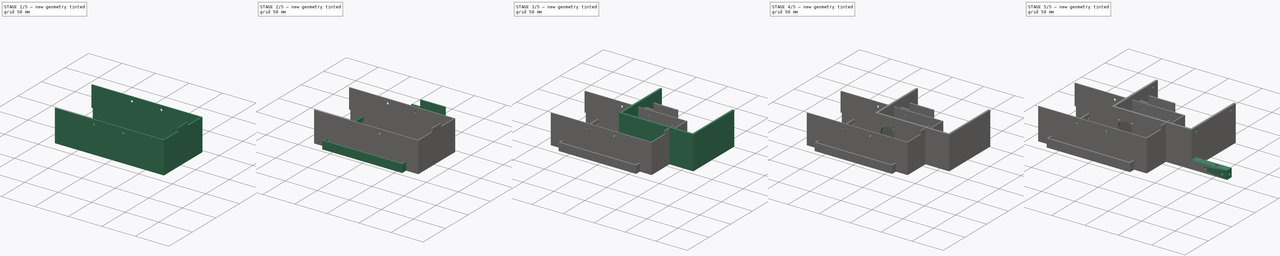
[diagram: build sequence overview — one tinted view per stage of 5, left to right]
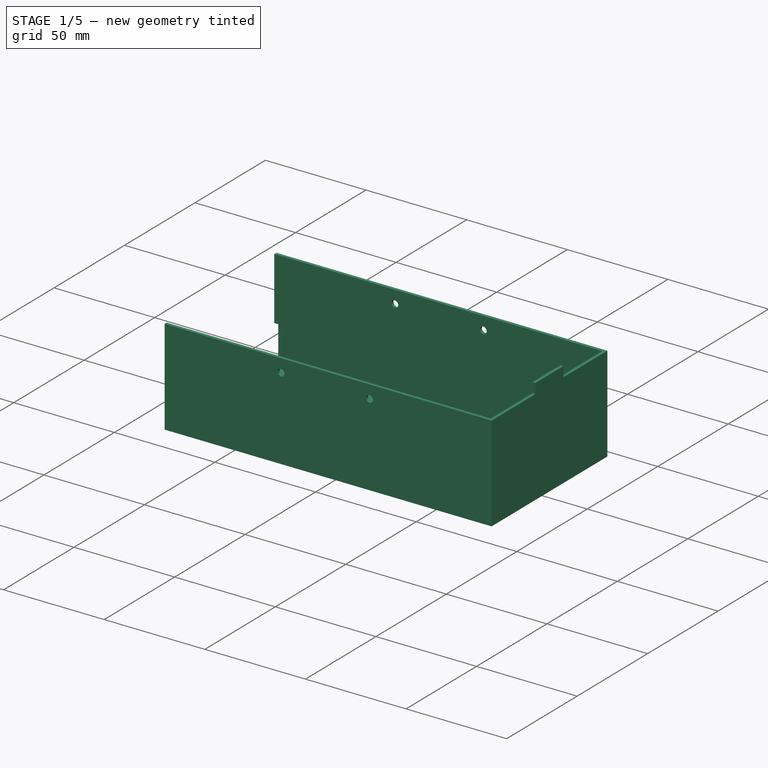
[diagram: stage 1 of 5 — iso view after this stage's code; geometry added in this stage tinted green]
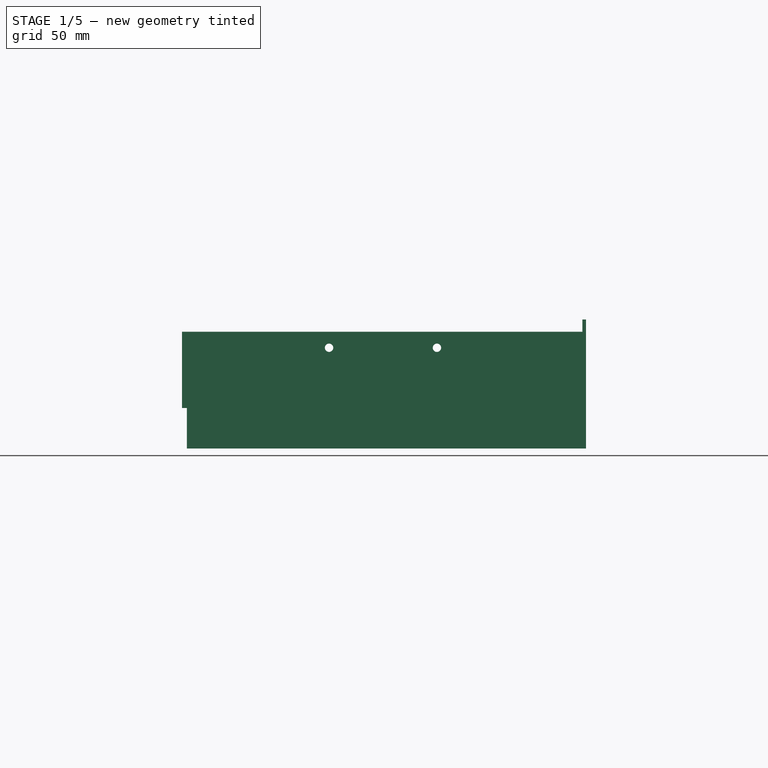
[diagram: stage 1 of 5 — front view after this stage's code; geometry added in this stage tinted green]
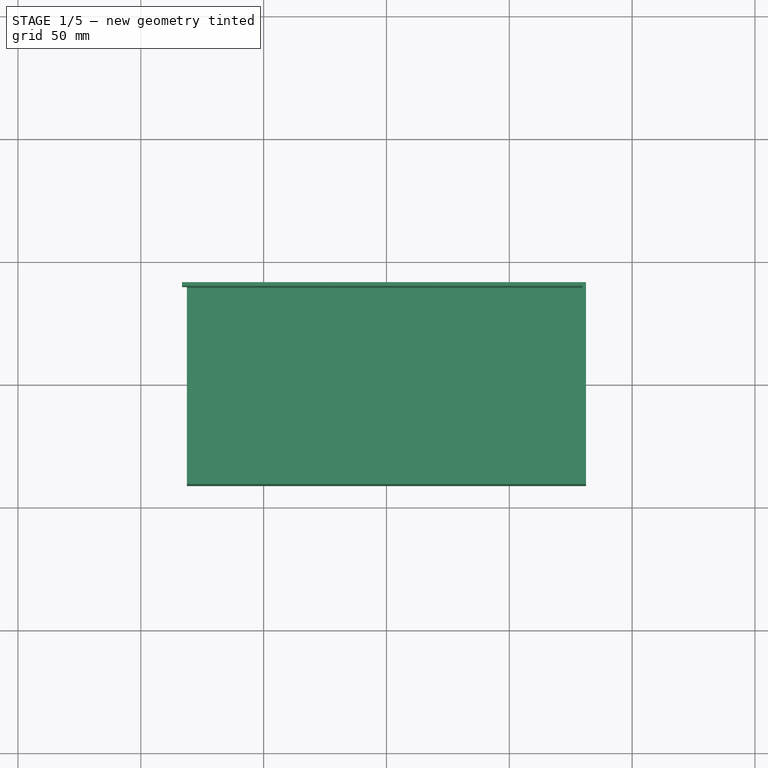
[diagram: stage 1 of 5 — top view after this stage's code; geometry added in this stage tinted green]
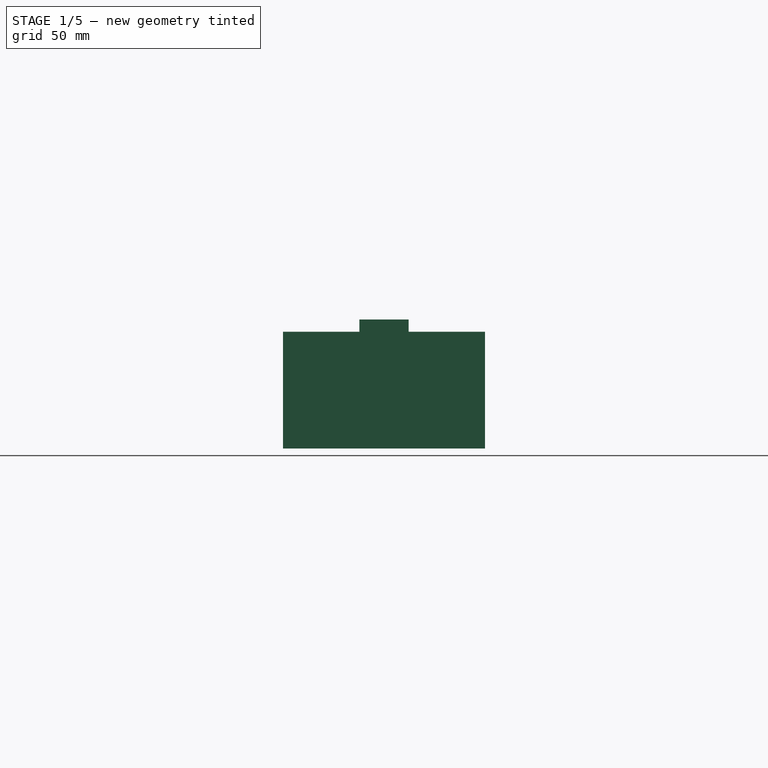
[diagram: stage 1 of 5 — right view after this stage's code; geometry added in this stage tinted green]
FCSTD DOCUMENT  (FreeCAD 1.0R39109 (Git))
Label: ContainerParts
License: All rights reserved
LicenseURL: http://en.wikipedia.org/wiki/All_rights_reserved
objects: Sketcher::SketchObject×30, PartDesign::Pad×17, PartDesign::Pocket×13, PartDesign::Body×5, App::Part×5
note: 155 computed .brp shape members not serialized (recipe doc carries the construction recipe); baked Part::Feature solids carry a one-line shape summary decoded from their .brp

FEATURE [PartDesign::Body] Body003  label="CoverPad"
  AllowCompound = false
  Group = -> [Sketch016,Pad006,Sketch017,Pad007,Sketch018,Pocket010,Sketch019,Pad008,Sketch020,Pad009,Sketch021,Pad010,Sketch022,Pad011,Sketch023,Pad012]
  Origin = -> Origin007
  Tip = -> Pad012
FEATURE [App::Part] Part003  label="MotorBoxCover1"
  Group = -> [Body003]
  Origin = -> Origin006
FEATURE [Sketcher::SketchObject] Sketch024
  ArcFitTolerance = 1e-06
  AttachmentSupport = -> [XY_Plane009]
  FullyConstrained = true
  MakeInternals = false
  MapMode = 5
  sketch-geometry (4):
    g0: LineSegment StartX=-81.25 StartY=41.1 StartZ=0 EndX=-81.25 EndY=-41.1 EndZ=0
    g1: LineSegment StartX=-81.25 StartY=-41.1 StartZ=0 EndX=81.25 EndY=-41.1 EndZ=0
    g2: LineSegment StartX=81.25 StartY=-41.1 StartZ=0 EndX=81.25 EndY=41.1 EndZ=0
    g3: LineSegment StartX=81.25 StartY=41.1 StartZ=0 EndX=-81.25 EndY=41.1 EndZ=0
  constraints (11):
    c: Coincident(g0,g1)
    c: Coincident(g1,g2)
    c: Coincident(g2,g3)
    c: Coincident(g3,g0)
    c: Vertical(g0)
    c: Vertical(g2)
    c: Horizontal(g1)
    c: Horizontal(g3)
    c: Distance(g0,g2) = 162.5
    c: Distance(g1,g3) = 82.2
    c: Symmetric(g2,g0,g-1)
FEATURE [PartDesign::Pad] Pad013  label="BackPad001"
  Direction = (0,0,1)
  Length = 1.5
  Length2 = 10
  Profile = -> Sketch024
  ReferenceAxis = -> Sketch024 [N_Axis]
  Refine = true
  Suppressed = false
  Type = 0
FEATURE [Sketcher::SketchObject] Sketch025
  ArcFitTolerance = 1e-06
  AttachmentSupport = -> [Pad013]
  FullyConstrained = true
  MakeInternals = false
  MapMode = 5
  Placement = pos=(0,0,1.5) rot=(0,0,1;0rad)
  sketch-geometry (8):
    g0: LineSegment StartX=-81.25 StartY=41.1 StartZ=0 EndX=81.25 EndY=41.1 EndZ=0
    g1: LineSegment StartX=81.25 StartY=41.1 StartZ=0 EndX=81.25 EndY=-41.1 EndZ=0
    g2: LineSegment StartX=81.25 StartY=-41.1 StartZ=0 EndX=-81.25 EndY=-41.1 EndZ=0
    g3: LineSegment StartX=-81.25 StartY=-41.1 StartZ=0 EndX=-81.25 EndY=-39.6 EndZ=0
    g4: LineSegment StartX=-81.25 StartY=-39.6 StartZ=0 EndX=79.75 EndY=-39.6 EndZ=0
    g5: LineSegment StartX=79.75 StartY=-39.6 StartZ=0 EndX=79.75 EndY=39.6 EndZ=0
    g6: LineSegment StartX=79.75 StartY=39.6 StartZ=0 EndX=-81.25 EndY=39.6 EndZ=0
    g7: LineSegment StartX=-81.25 StartY=41.1 StartZ=0 EndX=-81.25 EndY=39.6 EndZ=0
  constraints (24):
    c: Horizontal(g0)
    c: Coincident(g0,g1)
    c: Vertical(g1)
    c: Coincident(g1,g2)
    c: Horizontal(g2)
    c: Coincident(g2,g3)
    c: Vertical(g3)
    c: Coincident(g3,g4)
    c: Horizontal(g4)
    c: Coincident(g4,g5)
    c: Vertical(g5)
    c: Coincident(g5,g6)
    c: Horizontal(g6)
    c: Coincident(g0,g7)
    c: Coincident(g7,g6)
    c: Vertical(g7)
    c: DistanceX(g0,g0) = 162.5
    c: DistanceY(g1,g1) = 82.2
    c: DistanceY(g7,g7) = 1.5
    c: DistanceY(g3,g3) = 1.5
    c: DistanceY(g-1,g0) = 41.1
    c: DistanceX(g-1,g0) = 81.25
    c: DistanceX(g5,g0) = 1.5
    c: DistanceX(g2,g1) = 162.5
FEATURE [PartDesign::Pad] Pad014  label="EdgePad"
  BaseFeature = -> Pad013
  Direction = (0,0,1)
  Length = 46
  Length2 = 10
  Profile = -> Sketch025
  ReferenceAxis = -> Sketch025 [N_Axis]
  Refine = true
  Suppressed = false
  Type = 0
FEATURE [Sketcher::SketchObject] Sketch026
  ArcFitTolerance = 1e-06
  AttachmentSupport = -> [Pad014]
  FullyConstrained = true
  MakeInternals = false
  MapMode = 5
  Placement = pos=(-81.25,0,0) rot=(0.57735,-0.57735,-0.57735;2.0944rad)
  sketch-geometry (4):
    g0: LineSegment StartX=-41.1 StartY=47.5 StartZ=0 EndX=-41.1 EndY=16.5 EndZ=0
    g1: LineSegment StartX=-41.1 StartY=16.5 StartZ=0 EndX=-39.6 EndY=16.5 EndZ=0
    g2: LineSegment StartX=-39.6 StartY=16.5 StartZ=0 EndX=-39.6 EndY=47.5 EndZ=0
    g3: LineSegment StartX=-39.6 StartY=47.5 StartZ=0 EndX=-41.1 EndY=47.5 EndZ=0
  constraints (12):
    c: Coincident(g0,g1)
    c: Coincident(g1,g2)
    c: Coincident(g2,g3)
    c: Coincident(g3,g0)
    c: Vertical(g0)
    c: Vertical(g2)
    c: Horizontal(g1)
    c: Horizontal(g3)
    c: Distance(g0,g2) = 1.5
    c: Distance(g1,g3) = 31
    c: DistanceY(g-1,g2) = 47.5
    c: DistanceX(g0,g-1) = 41.1
FEATURE [PartDesign::Pad] Pad015
  BaseFeature = -> Pad014
  Direction = (-1,0,0)
  Length = 2
  Length2 = 10
  Profile = -> Sketch026
  ReferenceAxis = -> Sketch026 [N_Axis]
  Refine = true
  Suppressed = false
  Type = 0
FEATURE [Sketcher::SketchObject] Sketch027
  ArcFitTolerance = 1e-06
  AttachmentSupport = -> [Pad015]
  FullyConstrained = true
  MakeInternals = false
  MapMode = 5
  Placement = pos=(0,0,47.5) rot=(0,0,1;0rad)
  sketch-geometry (4):
    g0: LineSegment StartX=79.75 StartY=10 StartZ=0 EndX=79.75 EndY=-10 EndZ=0
    g1: LineSegment StartX=79.75 StartY=-10 StartZ=0 EndX=81.25 EndY=-10 EndZ=0
    g2: LineSegment StartX=81.25 StartY=-10 StartZ=0 EndX=81.25 EndY=10 EndZ=0
    g3: LineSegment StartX=81.25 StartY=10 StartZ=0 EndX=79.75 EndY=10 EndZ=0
  constraints (12):
    c: Coincident(g0,g1)
    c: Coincident(g1,g2)
    c: Coincident(g2,g3)
    c: Coincident(g3,g0)
    c: Vertical(g0)
    c: Vertical(g2)
    c: Horizontal(g1)
    c: Horizontal(g3)
    c: Distance(g0,g2) = 1.5
    c: Distance(g1,g3) = 20
    c: DistanceY(g0,g-1) = 10
    c: DistanceX(g-1,g2) = 81.25
FEATURE [PartDesign::Pad] Pad016
  BaseFeature = -> Pad015
  Direction = (0,0,1)
  Length = 5
  Length2 = 10
  Profile = -> Sketch027
  ReferenceAxis = -> Sketch027 [N_Axis]
  Refine = true
  Suppressed = false
  Type = 0
FEATURE [Sketcher::SketchObject] Sketch028
  ArcFitTolerance = 1e-06
  AttachmentSupport = -> [Pad016]
  FullyConstrained = true
  MakeInternals = false
  MapMode = 5
  Placement = pos=(81.25,0,0) rot=(0.57735,0.57735,0.57735;2.0944rad)
  sketch-geometry (2):
    g0: Circle CenterX=-33.25 CenterY=42.5 CenterZ=0 NormalX=0 NormalY=0 NormalZ=1 AngleXU=0 Radius=1.7
    g1: Circle CenterX=33.25 CenterY=42.5 CenterZ=0 NormalX=0 NormalY=0 NormalZ=1 AngleXU=0 Radius=1.7
  constraints (6):
    c: Diameter(g0) = 3.4
    c: Diameter(g1) = 3.4
    c: DistanceY(g1,g0) = 0
    c: DistanceY(g-1,g0) = 42.5
    c: DistanceX(g0,g-1) = 33.25
    c: DistanceX(g-1,g1) = 33.25
FEATURE [PartDesign::Pocket] Pocket011
  BaseFeature = -> Pad016
  Direction = (-1,0,0)
  Length = 0.001
  Length2 = 5
  Profile = -> Sketch028
  ReferenceAxis = -> Sketch028 [N_Axis]
  Refine = true
  Suppressed = false
  Type = 0
FEATURE [Sketcher::SketchObject] Sketch029
  ArcFitTolerance = 1e-06
  AttachmentSupport = -> [Pocket011]
  FullyConstrained = true
  MakeInternals = false
  MapMode = 5
  Placement = pos=(0,41.1,0) rot=(0,0.707107,0.707107;3.14159rad)
  sketch-geometry (2):
    g0: Circle CenterX=-20.55 CenterY=41 CenterZ=0 NormalX=0 NormalY=0 NormalZ=1 AngleXU=0 Radius=1.7
    g1: Circle CenterX=23.36 CenterY=41 CenterZ=0 NormalX=0 NormalY=0 NormalZ=1 AngleXU=0 Radius=1.7
  constraints (6):
    c: DistanceY(g1,g0) = 0
    c: Equal(g0,g1)
    c: Diameter(g0) = 3.4
    c: DistanceY(g-1,g1) = 41
    c: DistanceX(g0,g-1) = 20.55
    c: DistanceX(g1,g-1) = -23.36
FEATURE [PartDesign::Pocket] Pocket012
  BaseFeature = -> Pocket011
  Direction = (0,-1,2e-16)
  Length = 5
  Length2 = 5
  Profile = -> Sketch029
  ReferenceAxis = -> Sketch029 [N_Axis]
  Refine = true
  Suppressed = false
  Type = 1
FEATURE [PartDesign::Body] Body004  label="BigCoverBody"
  AllowCompound = false
  Group = -> [Sketch024,Pad013,Sketch025,Pad014,Sketch026,Pad015,Sketch027,Pad016,Sketch028,Pocket011,Sketch029,Pocket012]
  Origin = -> Origin009
  Tip = -> Pocket012
FEATURE [App::Part] Part004  label="BigCover"
  Group = -> [Body004]
  Origin = -> Origin008
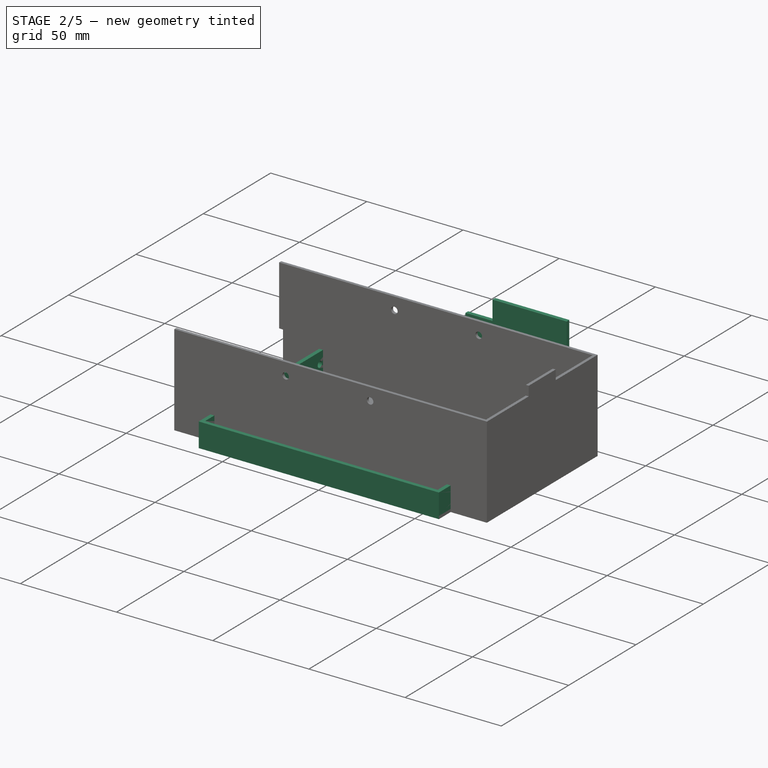
[diagram: stage 2 of 5 — iso view after this stage's code; geometry added in this stage tinted green]
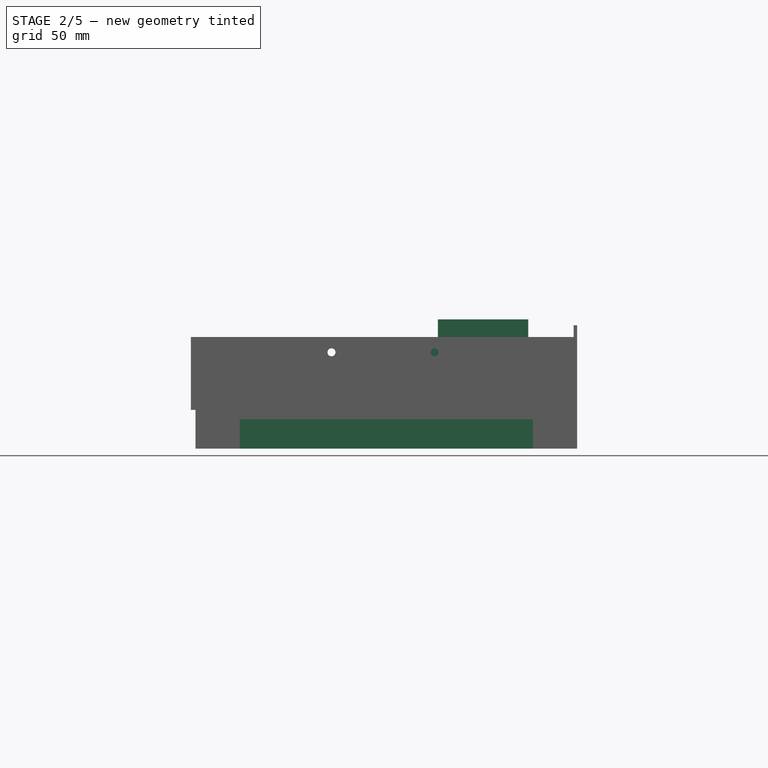
[diagram: stage 2 of 5 — front view after this stage's code; geometry added in this stage tinted green]
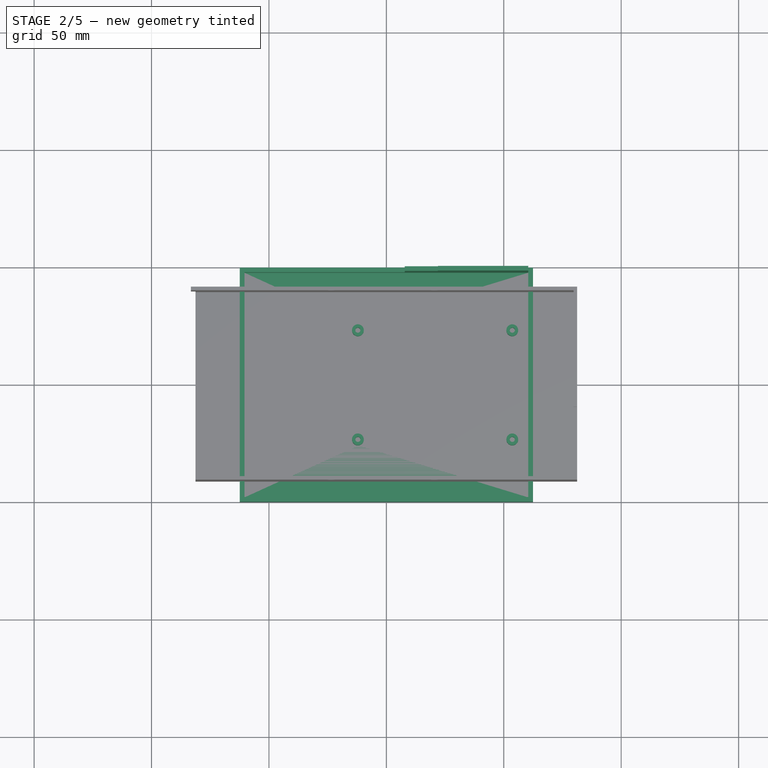
[diagram: stage 2 of 5 — top view after this stage's code; geometry added in this stage tinted green]
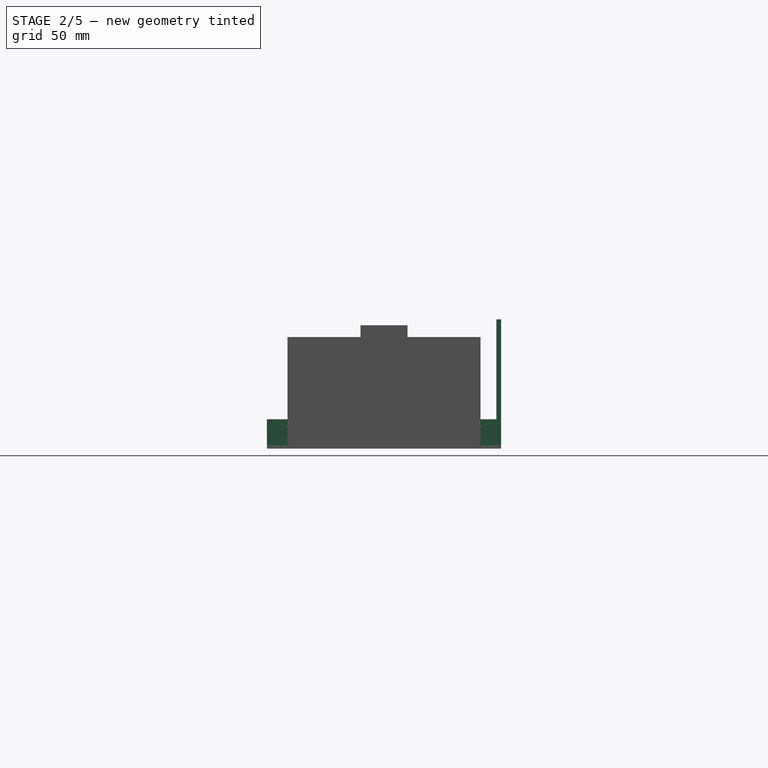
[diagram: stage 2 of 5 — right view after this stage's code; geometry added in this stage tinted green]
FEATURE [PartDesign::Body] Body002  label="MotorBox1Body"
  AllowCompound = false
  Group = -> [Sketch005,Pad002,Sketch006,Pad003,Sketch007,Pocket003,Sketch008,Pad004,Sketch009,Pocket004,Sketch010,Pocket005,Sketch011,Pad005,Sketch012,Pocket006,Sketch013,Pocket007,Sketch014,Pocket008,Sketch015,Pocket009]
  Origin = -> Origin005
  Tip = -> Pocket009
FEATURE [App::Part] Part002  label="MotorBox1"
  Group = -> [Body002]
  Origin = -> Origin004
FEATURE [Sketcher::SketchObject] Sketch016
  ArcFitTolerance = 1e-06
  AttachmentSupport = -> [XY_Plane007]
  FullyConstrained = true
  MakeInternals = false
  MapMode = 5
  sketch-geometry (4):
    g0: LineSegment StartX=-62.425 StartY=49.85 StartZ=0 EndX=-62.425 EndY=-49.85 EndZ=0
    g1: LineSegment StartX=-62.425 StartY=-49.85 StartZ=0 EndX=62.425 EndY=-49.85 EndZ=0
    g2: LineSegment StartX=62.425 StartY=-49.85 StartZ=0 EndX=62.425 EndY=49.85 EndZ=0
    g3: LineSegment StartX=62.425 StartY=49.85 StartZ=0 EndX=-62.425 EndY=49.85 EndZ=0
  constraints (11):
    c: Coincident(g0,g1)
    c: Coincident(g1,g2)
    c: Coincident(g2,g3)
    c: Coincident(g3,g0)
    c: Vertical(g0)
    c: Vertical(g2)
    c: Horizontal(g1)
    c: Horizontal(g3)
    c: Distance(g0,g2) = 124.85
    c: Distance(g1,g3) = 99.7
    c: Symmetric(g2,g0,g-1)
FEATURE [PartDesign::Pad] Pad006  label="TopPad"
  Direction = (0,0,1)
  Length = 1.5
  Length2 = 10
  Profile = -> Sketch016
  ReferenceAxis = -> Sketch016 [N_Axis]
  Suppressed = false
  Type = 0
FEATURE [Sketcher::SketchObject] Sketch017
  ArcFitTolerance = 1e-06
  AttachmentSupport = -> [Pad006]
  FullyConstrained = true
  MakeInternals = false
  MapMode = 5
  Placement = pos=(0,0,1.5) rot=(0,0,1;0rad)
  sketch-geometry (8):
    g0: LineSegment StartX=-62.425 StartY=49.85 StartZ=0 EndX=-62.425 EndY=-49.85 EndZ=0
    g1: LineSegment StartX=-62.425 StartY=-49.85 StartZ=0 EndX=62.425 EndY=-49.85 EndZ=0
    g2: LineSegment StartX=62.425 StartY=-49.85 StartZ=0 EndX=62.425 EndY=49.85 EndZ=0
    g3: LineSegment StartX=62.425 StartY=49.85 StartZ=0 EndX=-62.425 EndY=49.85 EndZ=0
    g4: LineSegment StartX=-60.425 StartY=47.85 StartZ=0 EndX=-60.425 EndY=-47.85 EndZ=0
    g5: LineSegment StartX=-60.425 StartY=-47.85 StartZ=0 EndX=60.425 EndY=-47.85 EndZ=0
    g6: LineSegment StartX=60.425 StartY=-47.85 StartZ=0 EndX=60.425 EndY=47.85 EndZ=0
    g7: LineSegment StartX=60.425 StartY=47.85 StartZ=0 EndX=-60.425 EndY=47.85 EndZ=0
  constraints (22):
    c: Coincident(g0,g1)
    c: Coincident(g1,g2)
    c: Coincident(g2,g3)
    c: Coincident(g3,g0)
    c: Vertical(g0)
    c: Vertical(g2)
    c: Horizontal(g1)
    c: Horizontal(g3)
    c: Distance(g0,g2) = 124.85
    c: Distance(g1,g3) = 99.7
    c: Symmetric(g2,g0,g-1)
    c: Coincident(g4,g5)
    c: Coincident(g5,g6)
    c: Coincident(g6,g7)
    c: Coincident(g7,g4)
    c: Vertical(g4)
    c: Vertical(g6)
    c: Horizontal(g5)
    c: Horizontal(g7)
    c: Distance(g4,g6) = 120.85
    c: Distance(g5,g7) = 95.7
    c: Symmetric(g4,g5,g-1)
FEATURE [PartDesign::Pad] Pad007  label="EdgePad1"
  BaseFeature = -> Pad006
  Direction = (0,0,1)
  Length = 11
  Length2 = 10
  Profile = -> Sketch017
  ReferenceAxis = -> Sketch017 [N_Axis]
  Suppressed = false
  Type = 0
FEATURE [Sketcher::SketchObject] Sketch018
  ArcFitTolerance = 1e-06
  AttachmentSupport = -> [Pad007]
  FullyConstrained = true
  MakeInternals = false
  MapMode = 5
  Placement = pos=(-62.425,0,0) rot=(0.57735,-0.57735,-0.57735;2.0944rad)
  sketch-geometry (2):
    g0: Circle CenterX=-37.25 CenterY=6.6 CenterZ=0 NormalX=0 NormalY=0 NormalZ=1 AngleXU=0 Radius=1.6
    g1: Circle CenterX=37.25 CenterY=6.6 CenterZ=0 NormalX=0 NormalY=0 NormalZ=1 AngleXU=0 Radius=1.6
  constraints (6):
    c: Diameter(g0) = 3.2
    c: Diameter(g1) = 3.2
    c: DistanceY(g1,g0) = 0
    c: DistanceX(g0,g1) = 74.5
    c: DistanceX(g0,g-1) = 37.25
    c: DistanceY(g-1,g0) = 6.6
FEATURE [PartDesign::Pocket] Pocket010  label="ScrewHoles"
  BaseFeature = -> Pad007
  Direction = (1,0,0)
  Length = 5
  Length2 = 5
  Profile = -> Sketch018
  ReferenceAxis = -> Sketch018 [N_Axis]
  Suppressed = false
  Type = 1
FEATURE [Sketcher::SketchObject] Sketch019
  ArcFitTolerance = 1e-06
  AttachmentSupport = -> [Pocket010]
  FullyConstrained = true
  MakeInternals = false
  MapMode = 5
  Placement = pos=(0,0,1.5) rot=(0,0,1;0rad)
  sketch-geometry (8):
    g0: Circle CenterX=-12.12 CenterY=23.25 CenterZ=0 NormalX=0 NormalY=0 NormalZ=1 AngleXU=0 Radius=2.5
    g1: Circle CenterX=53.63 CenterY=23.25 CenterZ=0 NormalX=0 NormalY=0 NormalZ=1 AngleXU=0 Radius=2.5
    g2: Circle CenterX=53.63 CenterY=-23.25 CenterZ=0 NormalX=0 NormalY=0 NormalZ=1 AngleXU=0 Radius=2.5
    g3: Circle CenterX=-12.12 CenterY=-23.25 CenterZ=0 NormalX=0 NormalY=0 NormalZ=1 AngleXU=0 Radius=2.5
    g4: Circle CenterX=-12.12 CenterY=23.25 CenterZ=0 NormalX=0 NormalY=0 NormalZ=1 AngleXU=0 Radius=1.1
    g5: Circle CenterX=53.63 CenterY=23.25 CenterZ=0 NormalX=0 NormalY=0 NormalZ=1 AngleXU=0 Radius=1.1
    g6: Circle CenterX=53.63 CenterY=-23.25 CenterZ=0 NormalX=0 NormalY=0 NormalZ=1 AngleXU=0 Radius=1.1
    g7: Circle CenterX=-12.12 CenterY=-23.25 CenterZ=0 NormalX=0 NormalY=0 NormalZ=1 AngleXU=0 Radius=1.1
  constraints (20):
    c: Diameter(g0) = 5
    c: Diameter(g1) = 5
    c: Diameter(g2) = 5
    c: Diameter(g3) = 5
    c: DistanceY(g2,g3) = 0
    c: DistanceY(g0,g1) = 0
    c: DistanceX(g2,g1) = 0
    c: DistanceX(g3,g0) = 0
    c: DistanceX(g0,g1) = 65.75
    c: DistanceY(g2,g1) = 46.5
    c: DistanceY(g-1,g0) = 23.25
    c: DistanceX(g-1,g1) = 53.63
    c: Diameter(g4) = 2.2
    c: Coincident(g4,g0)
    c: Diameter(g5) = 2.2
    c: Coincident(g5,g1)
    c: Diameter(g6) = 2.2
    c: Coincident(g6,g2)
    c: Diameter(g7) = 2.2
    c: Coincident(g7,g3)
FEATURE [PartDesign::Pad] Pad008  label="Mounts"
  BaseFeature = -> Pocket010
  Direction = (0,0,1)
  Length = 8
  Length2 = 10
  Profile = -> Sketch019
  ReferenceAxis = -> Sketch019 [N_Axis]
  Suppressed = false
  Type = 0
FEATURE [Sketcher::SketchObject] Sketch020
  ArcFitTolerance = 1e-06
  AttachmentSupport = -> [Pad008]
  FullyConstrained = true
  MakeInternals = false
  MapMode = 5
  Placement = pos=(0,0,12.5) rot=(0,0,1;0rad)
  sketch-geometry (4):
    g0: LineSegment StartX=21.92 StartY=49.85 StartZ=0 EndX=21.92 EndY=47.85 EndZ=0
    g1: LineSegment StartX=21.92 StartY=47.85 StartZ=0 EndX=60.42 EndY=47.85 EndZ=0
    g2: LineSegment StartX=60.42 StartY=47.85 StartZ=0 EndX=60.42 EndY=49.85 EndZ=0
    g3: LineSegment StartX=60.42 StartY=49.85 StartZ=0 EndX=21.92 EndY=49.85 EndZ=0
  constraints (12):
    c: Coincident(g0,g1)
    c: Coincident(g1,g2)
    c: Coincident(g2,g3)
    c: Coincident(g3,g0)
    c: Vertical(g0)
    c: Vertical(g2)
    c: Horizontal(g1)
    c: Horizontal(g3)
    c: Distance(g0,g2) = 38.5
    c: Distance(g1,g3) = 2
    c: DistanceX(g-1,g1) = 60.42
    c: DistanceY(g-1,g0) = 49.85
FEATURE [PartDesign::Pad] Pad009  label="Pad1"
  BaseFeature = -> Pad008
  Direction = (0,0,1)
  Length = 42.5
  Length2 = 10
  Profile = -> Sketch020
  ReferenceAxis = -> Sketch020 [N_Axis]
  Suppressed = false
  Type = 0
FEATURE [Sketcher::SketchObject] Sketch021
  ArcFitTolerance = 1e-06
  AttachmentSupport = -> [Pad009]
  FullyConstrained = true
  MakeInternals = false
  MapMode = 5
  Placement = pos=(0,0,12.5) rot=(0,0,1;0rad)
  sketch-geometry (4):
    g0: LineSegment StartX=21.925 StartY=49.85 StartZ=0 EndX=7.825 EndY=49.85 EndZ=0
    g1: LineSegment StartX=7.825 StartY=49.85 StartZ=0 EndX=7.825 EndY=47.85 EndZ=0
    g2: LineSegment StartX=7.825 StartY=47.85 StartZ=0 EndX=21.925 EndY=47.85 EndZ=0
    g3: LineSegment StartX=21.925 StartY=47.85 StartZ=0 EndX=21.925 EndY=49.85 EndZ=0
  constraints (12):
    c: Coincident(g0,g1)
    c: Coincident(g1,g2)
    c: Coincident(g2,g3)
    c: Coincident(g3,g0)
    c: Horizontal(g0)
    c: Horizontal(g2)
    c: Vertical(g1)
    c: Vertical(g3)
    c: Distance(g1,g3) = 14.1
    c: Distance(g0,g2) = 2
    c: DistanceY(g-1,g0) = 49.85
    c: DistanceX(g-1,g0) = 21.925
FEATURE [PartDesign::Pad] Pad010  label="Pad2"
  BaseFeature = -> Pad009
  Direction = (0,0,1)
  Length = 32.5
  Length2 = 10
  Profile = -> Sketch021
  ReferenceAxis = -> Sketch021 [N_Axis]
  Suppressed = false
  Type = 0
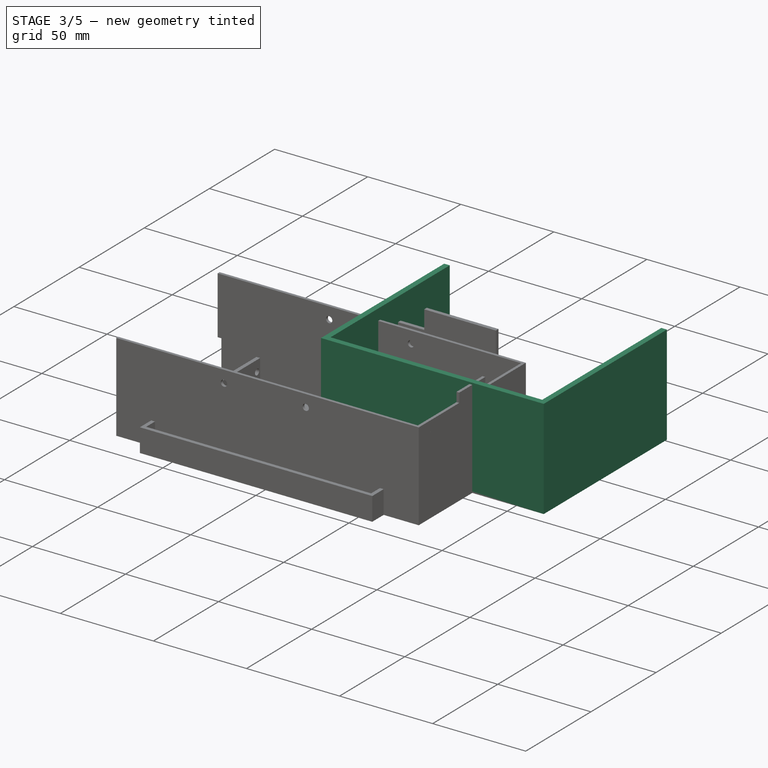
[diagram: stage 3 of 5 — iso view after this stage's code; geometry added in this stage tinted green]
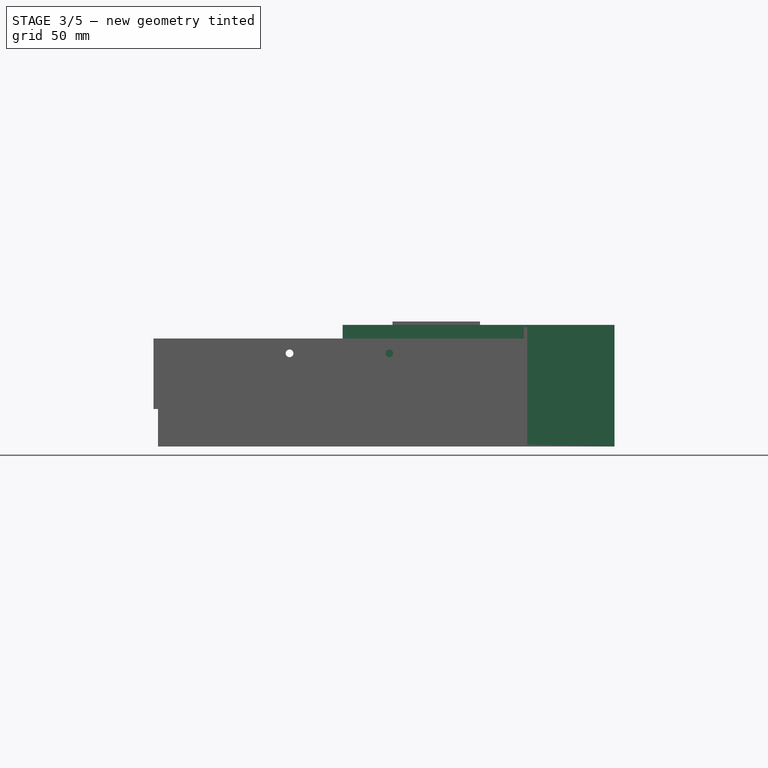
[diagram: stage 3 of 5 — front view after this stage's code; geometry added in this stage tinted green]
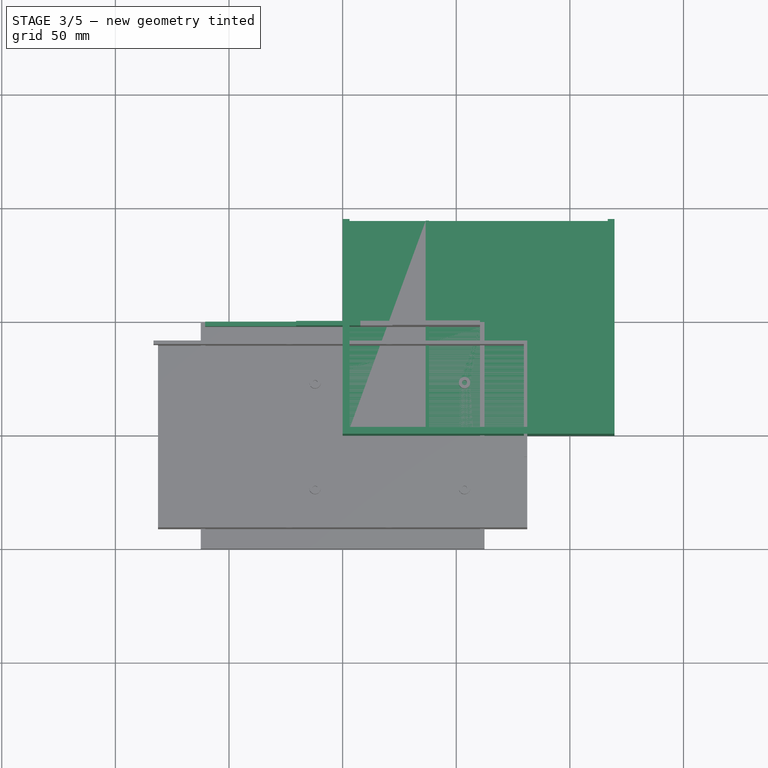
[diagram: stage 3 of 5 — top view after this stage's code; geometry added in this stage tinted green]
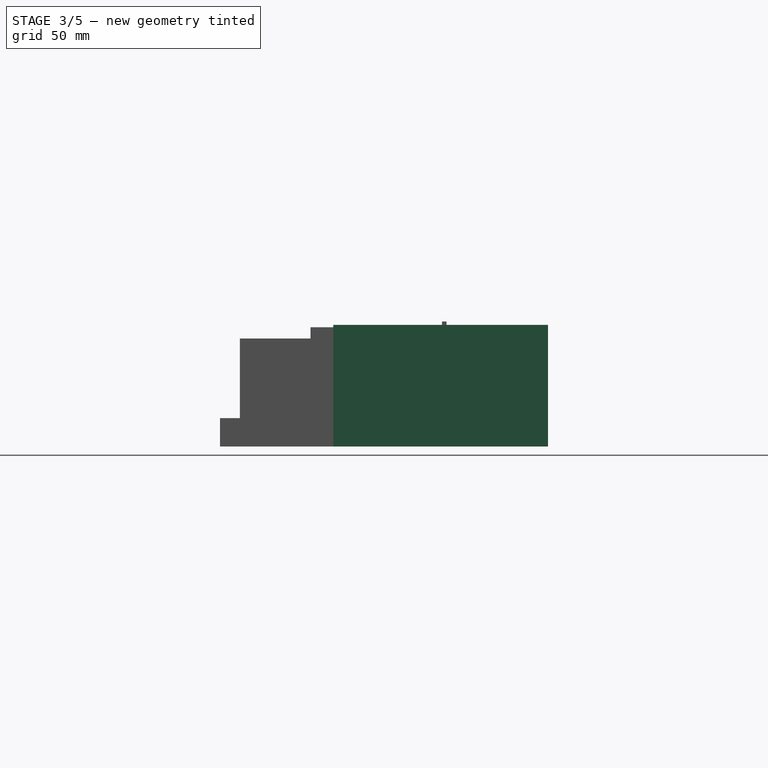
[diagram: stage 3 of 5 — right view after this stage's code; geometry added in this stage tinted green]
FEATURE [PartDesign::Body] Body001  label="WSBody001"
  AllowCompound = false
  Group = -> [Sketch001,Pad001,Sketch002,Pocket,Sketch003,Pocket001,Sketch004,Pocket002]
  Origin = -> Origin003
  Tip = -> Pocket002
FEATURE [App::Part] Part001  label="Long Mounts"
  Group = -> [Body001]
  Origin = -> Origin002
FEATURE [Sketcher::SketchObject] Sketch005
  ArcFitTolerance = 1e-06
  AttachmentSupport = -> [XY_Plane005]
  FullyConstrained = true
  MakeInternals = false
  MapMode = 5
  sketch-geometry (4):
    g0: LineSegment StartX=0 StartY=94.5 StartZ=0 EndX=0 EndY=0 EndZ=0
    g1: LineSegment StartX=0 StartY=0 StartZ=0 EndX=119.65 EndY=0 EndZ=0
    g2: LineSegment StartX=119.65 StartY=0 StartZ=0 EndX=119.65 EndY=94.5 EndZ=0
    g3: LineSegment StartX=119.65 StartY=94.5 StartZ=0 EndX=0 EndY=94.5 EndZ=0
  constraints (12):
    c: Coincident(g0,g1)
    c: Coincident(g1,g2)
    c: Coincident(g2,g3)
    c: Coincident(g3,g0)
    c: Vertical(g0)
    c: Vertical(g2)
    c: Horizontal(g1)
    c: Horizontal(g3)
    c: Distance(g0,g2) = 119.65
    c: Distance(g1,g3) = 94.5
    c: DistanceY(g0,g-1) = 0
    c: DistanceX(g0,g-1) = 0
FEATURE [PartDesign::Pad] Pad002  label="BackPad"
  Direction = (0,0,1)
  Length = 1.5
  Length2 = 10
  Profile = -> Sketch005
  ReferenceAxis = -> Sketch005 [N_Axis]
  Suppressed = false
  Type = 0
FEATURE [Sketcher::SketchObject] Sketch006
  ArcFitTolerance = 1e-06
  AttachmentSupport = -> [Pad002]
  FullyConstrained = true
  MakeInternals = false
  MapMode = 5
  Placement = pos=(0,0,1.5) rot=(0,0,1;0rad)
  sketch-geometry (4):
    g0: LineSegment StartX=36.5 StartY=94.5 StartZ=0 EndX=36.5 EndY=0 EndZ=0
    g1: LineSegment StartX=36.5 StartY=0 StartZ=0 EndX=38 EndY=0 EndZ=0
    g2: LineSegment StartX=38 StartY=0 StartZ=0 EndX=38 EndY=94.5 EndZ=0
    g3: LineSegment StartX=38 StartY=94.5 StartZ=0 EndX=36.5 EndY=94.5 EndZ=0
  constraints (12):
    c: Coincident(g0,g1)
    c: Coincident(g1,g2)
    c: Coincident(g2,g3)
    c: Coincident(g3,g0)
    c: Vertical(g0)
    c: Vertical(g2)
    c: Horizontal(g1)
    c: Horizontal(g3)
    c: Distance(g0,g2) = 1.5
    c: Distance(g1,g3) = 94.5
    c: PointOnObject(g1,g-1)
    c: DistanceX(g-1,g1) = 38
FEATURE [PartDesign::Pad] Pad003  label="InsideScrewPad"
  BaseFeature = -> Pad002
  Direction = (0,0,1)
  Length = 10
  Length2 = 10
  Profile = -> Sketch006
  ReferenceAxis = -> Sketch006 [N_Axis]
  Suppressed = false
  Type = 0
FEATURE [Sketcher::SketchObject] Sketch007
  ArcFitTolerance = 1e-06
  AttachmentSupport = -> [Pad003]
  FullyConstrained = true
  MakeInternals = false
  MapMode = 5
  Placement = pos=(36.5,0,0) rot=(0.57735,-0.57735,-0.57735;2.0944rad)
  sketch-geometry (1):
    g0: Circle CenterX=-66.09 CenterY=6.5 CenterZ=0 NormalX=0 NormalY=0 NormalZ=1 AngleXU=0 Radius=1.7
  constraints (3):
    c: Diameter(g0) = 3.4
    c: DistanceX(g0,g-1) = 66.09
    c: DistanceY(g-1,g0) = 6.5
FEATURE [PartDesign::Pocket] Pocket003  label="InsideScrewPocket"
  BaseFeature = -> Pad003
  Direction = (1,0,0)
  Length = 1.5
  Length2 = 5
  Profile = -> Sketch007
  ReferenceAxis = -> Sketch007 [N_Axis]
  Suppressed = false
  Type = 0
FEATURE [Sketcher::SketchObject] Sketch008
  ArcFitTolerance = 1e-06
  AttachmentSupport = -> [Pocket003]
  FullyConstrained = true
  MakeInternals = false
  MapMode = 5
  Placement = pos=(0,0,1.5) rot=(0,0,1;0rad)
  sketch-geometry (8):
    g0: LineSegment StartX=0 StartY=0 StartZ=0 EndX=119.65 EndY=0 EndZ=0
    g1: LineSegment StartX=119.65 StartY=0 StartZ=0 EndX=119.65 EndY=94.5 EndZ=0
    g2: LineSegment StartX=119.65 StartY=94.5 StartZ=0 EndX=116.65 EndY=94.5 EndZ=0
    g3: LineSegment StartX=116.65 StartY=94.5 StartZ=0 EndX=116.65 EndY=3 EndZ=0
    g4: LineSegment StartX=116.65 StartY=3 StartZ=0 EndX=3 EndY=3 EndZ=0
    g5: LineSegment StartX=3 StartY=3 StartZ=0 EndX=3 EndY=94.5 EndZ=0
    g6: LineSegment StartX=3 StartY=94.5 StartZ=0 EndX=0 EndY=94.5 EndZ=0
    g7: LineSegment StartX=0 StartY=94.5 StartZ=0 EndX=0 EndY=0 EndZ=0
  constraints (23):
    c: Coincident(g-1,g0)
    c: PointOnObject(g0,g-1)
    c: Coincident(g0,g1)
    c: Vertical(g1)
    c: Coincident(g1,g2)
    c: Horizontal(g2)
    c: Coincident(g2,g3)
    c: Vertical(g3)
    c: Coincident(g3,g4)
    c: Horizontal(g4)
    c: Coincident(g4,g5)
    c: Vertical(g5)
    c: Coincident(g5,g6)
    c: PointOnObject(g6,g-2)
    c: Horizontal(g6)
    c: Coincident(g6,g7)
    c: Coincident(g7,g0)
    c: DistanceX(g6,g6) = 3
    c: DistanceX(g2,g2) = 3
    c: DistanceX(g0,g0) = 119.65
    c: DistanceY(g0,g4) = 3
    c: DistanceY(g7,g7) = 94.5
    c: DistanceY(g1,g1) = 94.5
FEATURE [PartDesign::Pad] Pad004  label="OutsidePad"
  BaseFeature = -> Pocket003
  Direction = (0,0,1)
  Length = 52
  Length2 = 10
  Profile = -> Sketch008
  ReferenceAxis = -> Sketch008 [N_Axis]
  Suppressed = false
  Type = 0
FEATURE [Sketcher::SketchObject] Sketch022
  ArcFitTolerance = 1e-06
  AttachmentSupport = -> [Pad010]
  FullyConstrained = true
  MakeInternals = false
  MapMode = 5
  Placement = pos=(0,0,12.5) rot=(0,0,1;0rad)
  sketch-geometry (4):
    g0: LineSegment StartX=7.825 StartY=49.85 StartZ=0 EndX=-20.475 EndY=49.85 EndZ=0
    g1: LineSegment StartX=-20.475 StartY=49.85 StartZ=0 EndX=-20.475 EndY=47.85 EndZ=0
    g2: LineSegment StartX=-20.475 StartY=47.85 StartZ=0 EndX=7.825 EndY=47.85 EndZ=0
    g3: LineSegment StartX=7.825 StartY=47.85 StartZ=0 EndX=7.825 EndY=49.85 EndZ=0
  constraints (12):
    c: Coincident(g0,g1)
    c: Coincident(g1,g2)
    c: Coincident(g2,g3)
    c: Coincident(g3,g0)
    c: Horizontal(g0)
    c: Horizontal(g2)
    c: Vertical(g1)
    c: Vertical(g3)
    c: Distance(g1,g3) = 28.3
    c: Distance(g0,g2) = 2
    c: DistanceY(g-1,g0) = 49.85
    c: DistanceX(g-1,g2) = 7.825
FEATURE [PartDesign::Pad] Pad011  label="Pad03"
  BaseFeature = -> Pad010
  Direction = (0,0,1)
  Length = 30
  Length2 = 10
  Profile = -> Sketch022
  ReferenceAxis = -> Sketch022 [N_Axis]
  Suppressed = false
  Type = 0
FEATURE [Sketcher::SketchObject] Sketch023
  ArcFitTolerance = 1e-06
  AttachmentSupport = -> [Pad011]
  FullyConstrained = true
  MakeInternals = false
  MapMode = 5
  Placement = pos=(0,0,12.5) rot=(0,0,1;0rad)
  sketch-geometry (4):
    g0: LineSegment StartX=-20.27 StartY=49.85 StartZ=0 EndX=-60.52 EndY=49.85 EndZ=0
    g1: LineSegment StartX=-60.52 StartY=49.85 StartZ=0 EndX=-60.52 EndY=47.85 EndZ=0
    g2: LineSegment StartX=-60.52 StartY=47.85 StartZ=0 EndX=-20.27 EndY=47.85 EndZ=0
    g3: LineSegment StartX=-20.27 StartY=47.85 StartZ=0 EndX=-20.27 EndY=49.85 EndZ=0
  constraints (12):
    c: Coincident(g0,g1)
    c: Coincident(g1,g2)
    c: Coincident(g2,g3)
    c: Coincident(g3,g0)
    c: Horizontal(g0)
    c: Horizontal(g2)
    c: Vertical(g1)
    c: Vertical(g3)
    c: Distance(g1,g3) = 40.25
    c: Distance(g0,g2) = 2
    c: DistanceY(g-1,g0) = 49.85
    c: DistanceX(g0,g-1) = 60.52
FEATURE [PartDesign::Pad] Pad012  label="Pad04"
  BaseFeature = -> Pad011
  Direction = (0,0,1)
  Length = 10
  Length2 = 10
  Profile = -> Sketch023
  ReferenceAxis = -> Sketch023 [N_Axis]
  Suppressed = false
  Type = 0
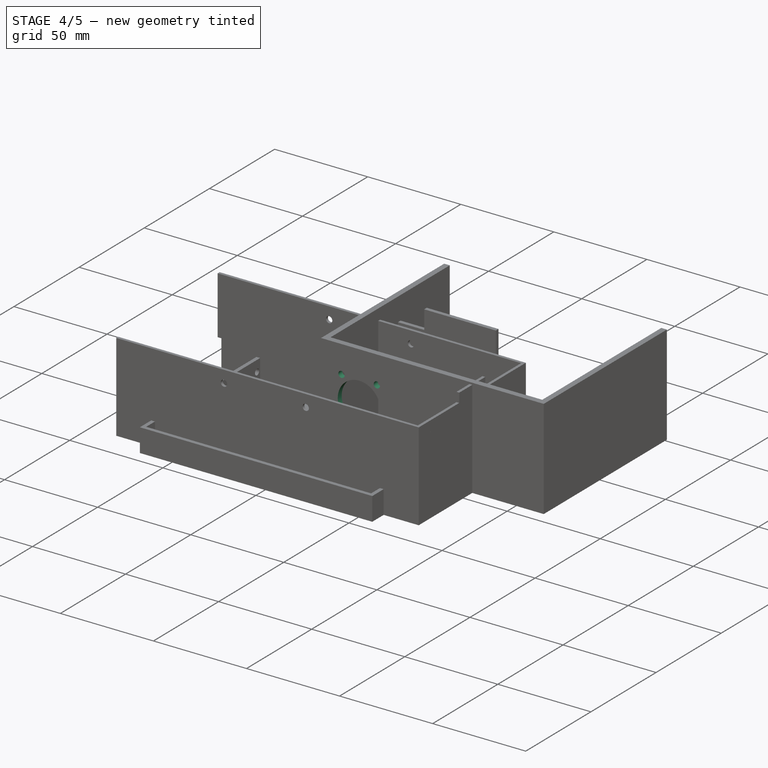
[diagram: stage 4 of 5 — iso view after this stage's code; geometry added in this stage tinted green]
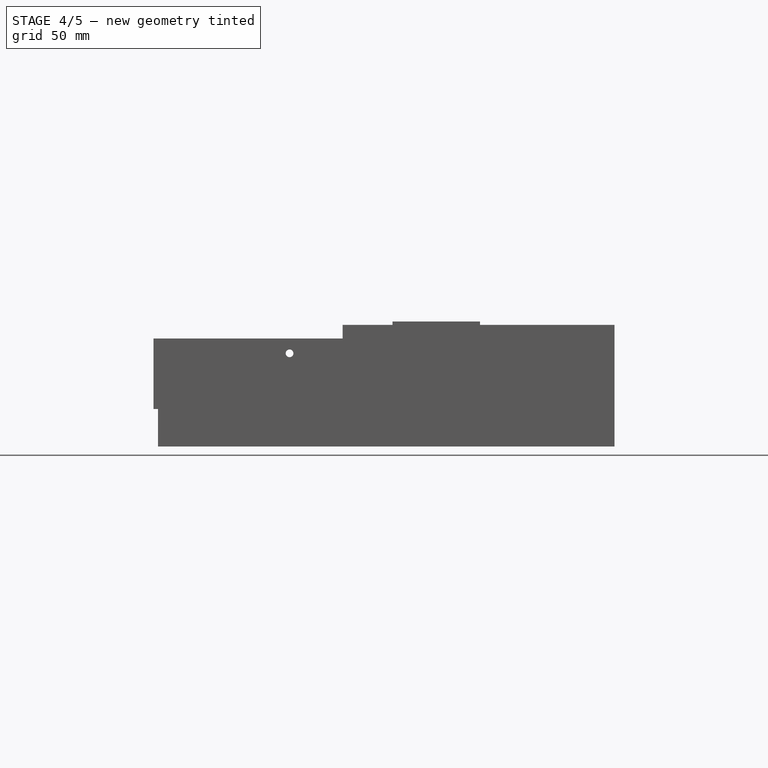
[diagram: stage 4 of 5 — front view after this stage's code; geometry added in this stage tinted green]
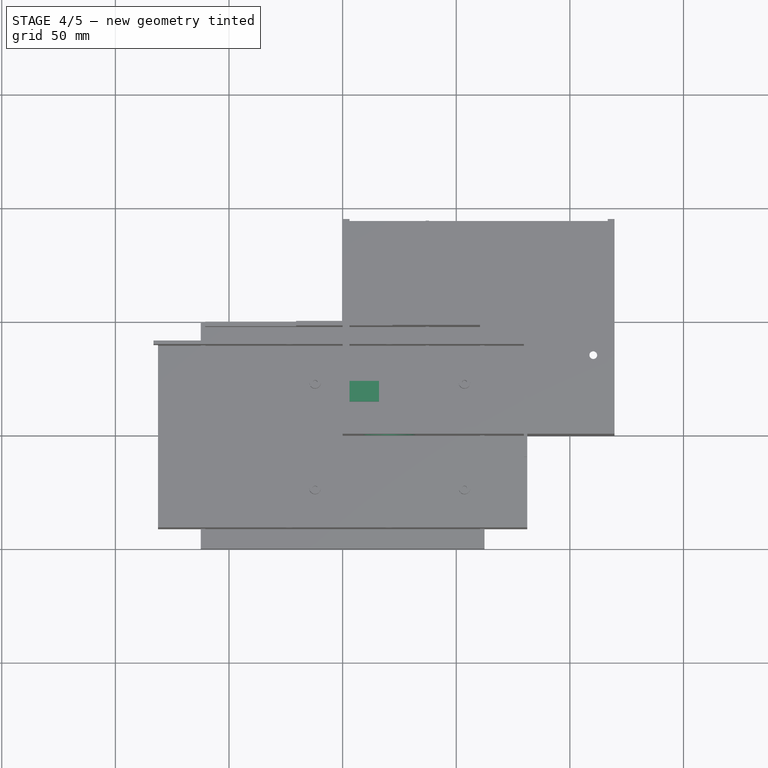
[diagram: stage 4 of 5 — top view after this stage's code; geometry added in this stage tinted green]
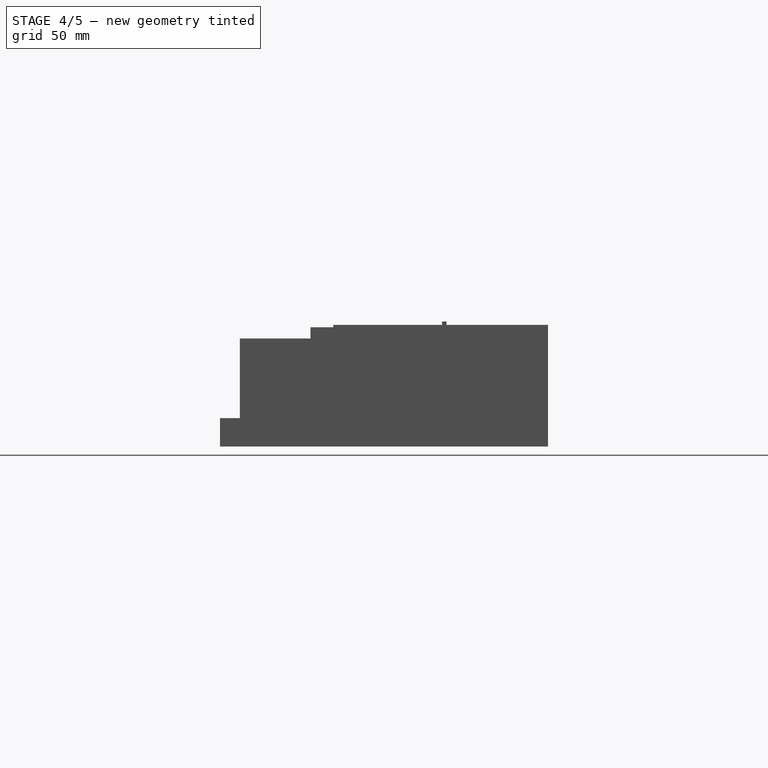
[diagram: stage 4 of 5 — right view after this stage's code; geometry added in this stage tinted green]
FEATURE [Sketcher::SketchObject] Sketch009
  ArcFitTolerance = 1e-06
  AttachmentSupport = -> [Pad004]
  FullyConstrained = true
  MakeInternals = false
  MapMode = 5
  Placement = pos=(0,0,0) rot=(0.57735,-0.57735,-0.57735;2.0944rad)
  sketch-geometry (1):
    g0: Circle CenterX=-35 CenterY=26.75 CenterZ=0 NormalX=0 NormalY=0 NormalZ=1 AngleXU=0 Radius=4
  constraints (3):
    c: Diameter(g0) = 8
    c: DistanceY(g-1,g0) = 26.75
    c: DistanceX(g0,g-1) = 35
FEATURE [PartDesign::Pocket] Pocket004  label="AntennaPocket"
  BaseFeature = -> Pad004
  Direction = (1,0,0)
  Length = 3
  Length2 = 5
  Profile = -> Sketch009
  ReferenceAxis = -> Sketch009 [N_Axis]
  Suppressed = false
  Type = 0
FEATURE [Sketcher::SketchObject] Sketch010
  ArcFitTolerance = 1e-06
  AttachmentSupport = -> [Pocket004]
  FullyConstrained = true
  MakeInternals = false
  MapMode = 5
  Placement = pos=(0,3,0) rot=(0,0.707107,0.707107;3.14159rad)
  sketch-geometry (5):
    g0: Circle CenterX=-20.5 CenterY=26.75 CenterZ=0 NormalX=0 NormalY=0 NormalZ=1 AngleXU=0 Radius=11.5
    g1: Circle CenterX=-30 CenterY=38.75 CenterZ=0 NormalX=0 NormalY=0 NormalZ=1 AngleXU=0 Radius=1.7
    g2: Circle CenterX=-11 CenterY=38.75 CenterZ=0 NormalX=0 NormalY=0 NormalZ=1 AngleXU=0 Radius=1.7
    g3: Circle CenterX=-11 CenterY=14.75 CenterZ=0 NormalX=0 NormalY=0 NormalZ=1 AngleXU=0 Radius=1.7
    g4: Circle CenterX=-30 CenterY=14.75 CenterZ=0 NormalX=0 NormalY=0 NormalZ=1 AngleXU=0 Radius=1.7
  constraints (14):
    c: Diameter(g0) = 23
    c: Equal(g1,g2)
    c: Equal(g1,g3)
    c: Equal(g1,g4)
    c: Diameter(g1) = 3.4
    c: DistanceY(g2,g1) = 0
    c: DistanceY(g3,g4) = 0
    c: DistanceX(g4,g1) = 0
    c: DistanceX(g3,g2) = 0
    c: DistanceX(g1,g2) = 19
    c: DistanceY(g3,g2) = 24
    c: Symmetric(g2,g4,g0)
    c: DistanceY(g-1,g0) = 26.75
    c: DistanceX(g0,g-1) = 20.5
FEATURE [PartDesign::Pocket] Pocket005  label="PowerPocket"
  BaseFeature = -> Pocket004
  Direction = (0,-1,2e-16)
  Length = 3
  Length2 = 5
  Profile = -> Sketch010
  ReferenceAxis = -> Sketch010 [N_Axis]
  Suppressed = false
  Type = 0
FEATURE [Sketcher::SketchObject] Sketch011
  ArcFitTolerance = 1e-06
  AttachmentSupport = -> [Pocket005]
  FullyConstrained = true
  MakeInternals = false
  MapMode = 5
  Placement = pos=(0,0,1.5) rot=(0,0,1;0rad)
  sketch-geometry (4):
    g0: LineSegment StartX=0 StartY=24 StartZ=0 EndX=0 EndY=15 EndZ=0
    g1: LineSegment StartX=0 StartY=15 StartZ=0 EndX=16 EndY=15 EndZ=0
    g2: LineSegment StartX=16 StartY=15 StartZ=0 EndX=16 EndY=24 EndZ=0
    g3: LineSegment StartX=16 StartY=24 StartZ=0 EndX=0 EndY=24 EndZ=0
  constraints (12):
    c: Coincident(g0,g1)
    c: Coincident(g1,g2)
    c: Coincident(g2,g3)
    c: Coincident(g3,g0)
    c: Vertical(g0)
    c: Vertical(g2)
    c: Horizontal(g1)
    c: Horizontal(g3)
    c: Distance(g0,g2) = 16
    c: Distance(g1,g3) = 9
    c: PointOnObject(g0,g-2)
    c: DistanceY(g-1,g0) = 15
FEATURE [PartDesign::Pad] Pad005  label="GroundPad"
  BaseFeature = -> Pocket005
  Direction = (0,0,1)
  Length = 9
  Length2 = 10
  Profile = -> Sketch011
  ReferenceAxis = -> Sketch011 [N_Axis]
  Suppressed = false
  Type = 0
FEATURE [Sketcher::SketchObject] Sketch012
  ArcFitTolerance = 1e-06
  AttachmentSupport = -> [Pad005]
  FullyConstrained = true
  MakeInternals = false
  MapMode = 5
  Placement = pos=(16,0,0) rot=(0.57735,0.57735,0.57735;2.0944rad)
  sketch-geometry (1):
    g0: Circle CenterX=19.5 CenterY=6 CenterZ=0 NormalX=0 NormalY=0 NormalZ=1 AngleXU=0 Radius=1.6
  constraints (3):
    c: Diameter(g0) = 3.2
    c: DistanceY(g-1,g0) = 6
    c: DistanceX(g-1,g0) = 19.5
FEATURE [PartDesign::Pocket] Pocket006  label="ThumbScrewHole"
  BaseFeature = -> Pad005
  Direction = (-1,0,0)
  Length = 5
  Length2 = 5
  Profile = -> Sketch012
  ReferenceAxis = -> Sketch012 [N_Axis]
  Suppressed = false
  Type = 1
FEATURE [Sketcher::SketchObject] Sketch013
  ArcFitTolerance = 1e-06
  AttachmentSupport = -> [Pocket006]
  FullyConstrained = true
  MakeInternals = false
  MapMode = 5
  Placement = pos=(16,0,0) rot=(0.57735,0.57735,0.57735;2.0944rad)
  sketch-geometry (7):
    g0: LineSegment StartX=22.3 StartY=6 StartZ=0 EndX=20.9 EndY=8.42487 EndZ=0
    g1: LineSegment StartX=20.9 StartY=8.42487 StartZ=0 EndX=18.1 EndY=8.42487 EndZ=0
    g2: LineSegment StartX=18.1 StartY=8.42487 StartZ=0 EndX=16.7 EndY=6 EndZ=0
    g3: LineSegment StartX=16.7 StartY=6 StartZ=0 EndX=18.1 EndY=3.57513 EndZ=0
    g4: LineSegment StartX=18.1 StartY=3.57513 StartZ=0 EndX=20.9 EndY=3.57513 EndZ=0
    g5: LineSegment StartX=20.9 StartY=3.57513 StartZ=0 EndX=22.3 EndY=6 EndZ=0
    g6: Circle [constr] CenterX=19.5 CenterY=6 CenterZ=0 NormalX=0 NormalY=0 NormalZ=1 AngleXU=0 Radius=2.8
  constraints (17):
    c: Coincident(g0,g1)
    c: Coincident(g1,g2)
    c: Coincident(g2,g3)
    c: Coincident(g3,g4)
    c: Coincident(g4,g5)
    c: Coincident(g5,g0)
    c: Equal(g0, g1-g5) x5
    c: PointOnObject(g0,g6)
    c: PointOnObject(g1,g6)
    c: PointOnObject(g2,g6)
    c: PointOnObject(g3,g6)
    c: PointOnObject(g4,g6)
    c: PointOnObject(g5,g6)
    c: Radius(g6) = 2.8
    c: DistanceX(g-1,g6) = 19.5
    c: DistanceY(g-1,g6) = 6
    c: DistanceY(g-1,g2) = 6
FEATURE [PartDesign::Pocket] Pocket007  label="HexPocket"
  BaseFeature = -> Pocket006
  Direction = (-1,0,0)
  Length = 13
  Length2 = 5
  Profile = -> Sketch013
  ReferenceAxis = -> Sketch013 [N_Axis]
  Suppressed = false
  Type = 0
FEATURE [Sketcher::SketchObject] Sketch014
  ArcFitTolerance = 1e-06
  AttachmentSupport = -> [Pocket007]
  FullyConstrained = true
  MakeInternals = false
  MapMode = 5
  Placement = pos=(0,0,0) rot=(1,0,0;3.14159rad)
  sketch-geometry (2):
    g0: Circle CenterX=45.3 CenterY=-35.5 CenterZ=0 NormalX=0 NormalY=0 NormalZ=1 AngleXU=0 Radius=1.7
    g1: Circle CenterX=110.3 CenterY=-35.5 CenterZ=0 NormalX=0 NormalY=0 NormalZ=1 AngleXU=0 Radius=1.7
  constraints (6):
    c: Equal(g0,g1)
    c: Diameter(g0) = 3.4
    c: DistanceY(g1,g0) = 0
    c: DistanceY(g0,g-1) = 35.5
    c: DistanceX(g0,g1) = 65
    c: DistanceX(g-1,g1) = 110.3
FEATURE [PartDesign::Pocket] Pocket008  label="BackScrewHoles"
  BaseFeature = -> Pocket007
  Direction = (0,0,1)
  Length = 1.5
  Length2 = 5
  Profile = -> Sketch014
  ReferenceAxis = -> Sketch014 [N_Axis]
  Suppressed = false
  Type = 0
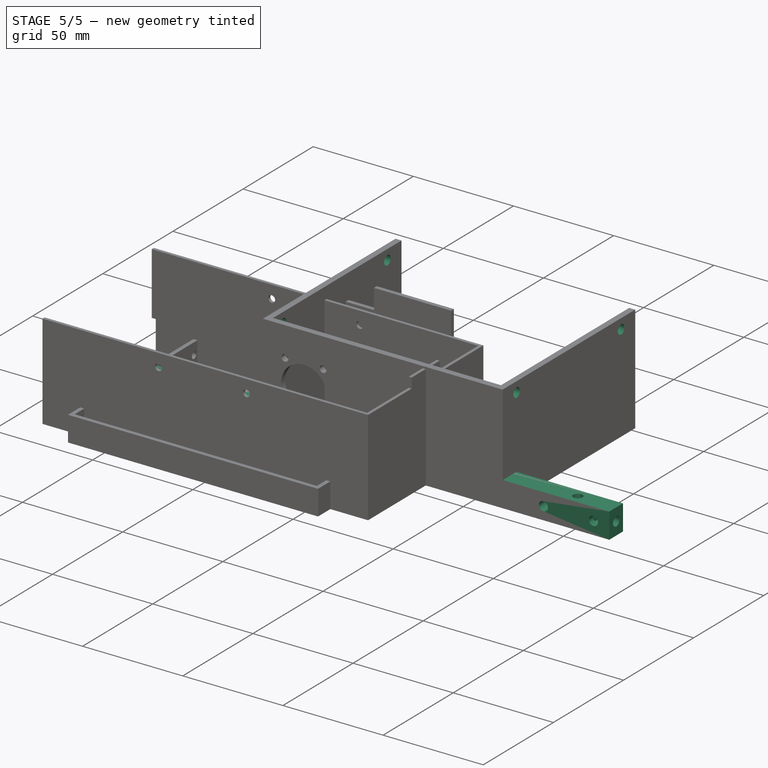
[diagram: stage 5 of 5 — iso view after this stage's code; geometry added in this stage tinted green]
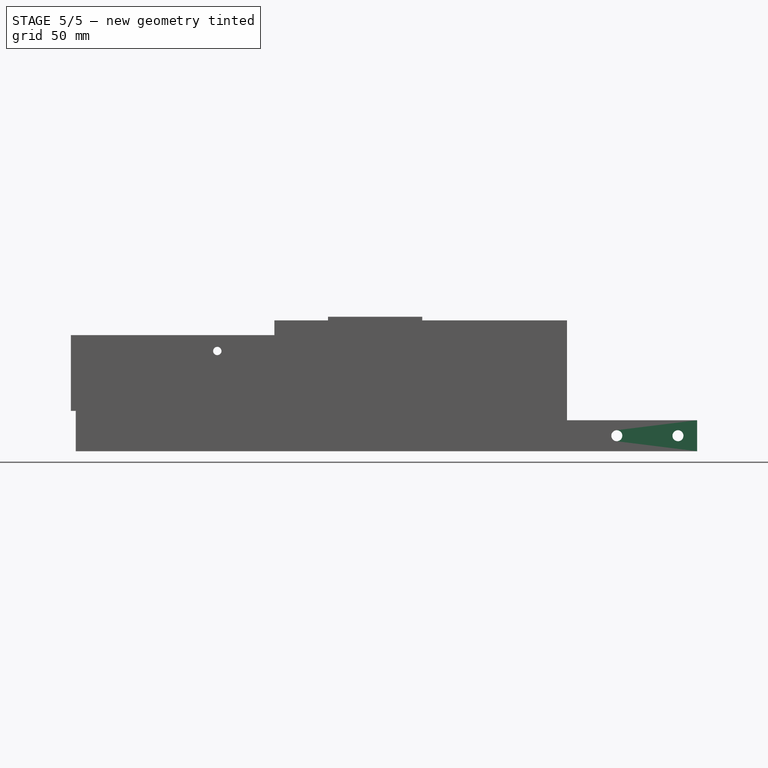
[diagram: stage 5 of 5 — front view after this stage's code; geometry added in this stage tinted green]
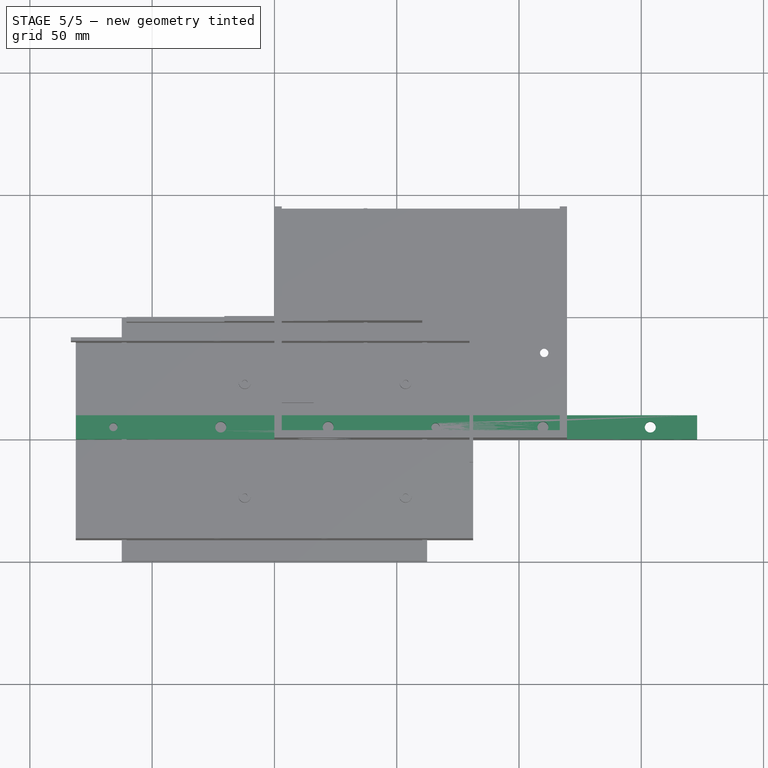
[diagram: stage 5 of 5 — top view after this stage's code; geometry added in this stage tinted green]
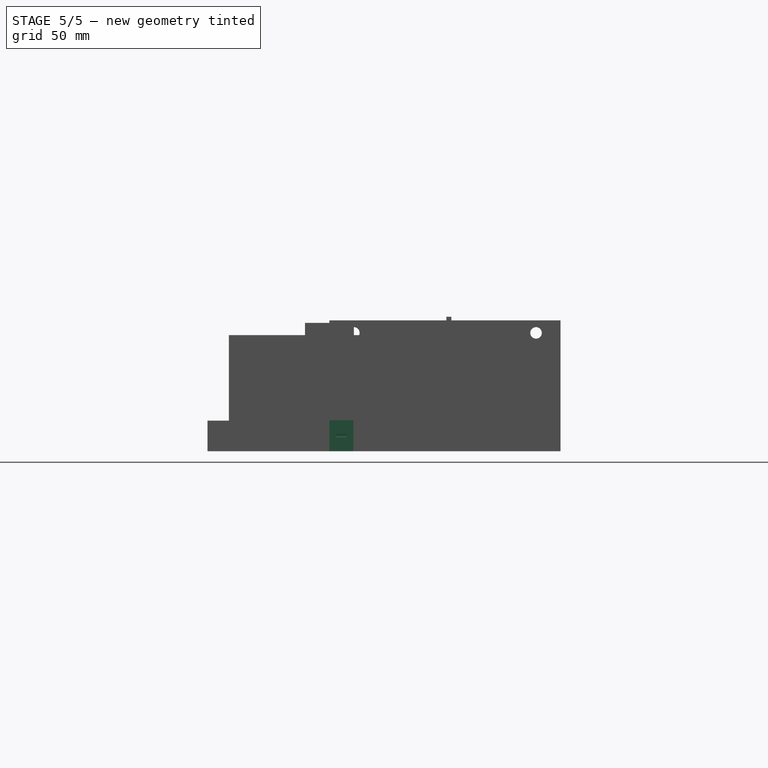
[diagram: stage 5 of 5 — right view after this stage's code; geometry added in this stage tinted green]
FEATURE [Sketcher::SketchObject] Sketch
  ArcFitTolerance = 1e-06
  AttachmentSupport = -> [XY_Plane001]
  FullyConstrained = true
  MakeInternals = false
  MapMode = 5
  sketch-geometry (6):
    g0: LineSegment StartX=-81.15 StartY=0 StartZ=0 EndX=81.15 EndY=0 EndZ=0
    g1: LineSegment StartX=81.15 StartY=0 StartZ=0 EndX=81.15 EndY=9.8 EndZ=0
    g2: LineSegment StartX=81.15 StartY=9.8 StartZ=0 EndX=-81.15 EndY=9.8 EndZ=0
    g3: LineSegment StartX=-81.15 StartY=9.8 StartZ=0 EndX=-81.15 EndY=0 EndZ=0
    g4: Circle CenterX=-65.8625 CenterY=5 CenterZ=0 NormalX=0 NormalY=0 NormalZ=1 AngleXU=0 Radius=1.7
    g5: Circle CenterX=65.8625 CenterY=5 CenterZ=0 NormalX=0 NormalY=0 NormalZ=1 AngleXU=0 Radius=1.7
  constraints (18):
    c: Coincident(g0,g1)
    c: Coincident(g1,g2)
    c: Coincident(g2,g3)
    c: Coincident(g3,g0)
    c: Horizontal(g0)
    c: Horizontal(g2)
    c: Vertical(g1)
    c: Vertical(g3)
    c: Distance(g1,g3) = 162.3
    c: Distance(g0,g2) = 9.8
    c: PointOnObject(g0,g-1)
    c: DistanceX(g0,g-1) = 81.15
    c: Equal(g4,g5)
    c: Diameter(g4) = 3.4
    c: DistanceY(g5,g4) = 0
    c: DistanceX(g4,g5) = 131.725
    c: DistanceX(g4,g-1) = 65.8625
    c: DistanceY(g-1,g4) = 5
FEATURE [PartDesign::Pad] Pad  label="WSPad"
  Direction = (0,0,1)
  Length = 0.75
  Length2 = 10
  Profile = -> Sketch
  ReferenceAxis = -> Sketch [N_Axis]
  Suppressed = false
  Type = 0
FEATURE [PartDesign::Body] Body  label="WSBody"
  AllowCompound = false
  Group = -> [Sketch,Pad]
  Origin = -> Origin001
  Tip = -> Pad
FEATURE [App::Part] Part  label="WeatherStrip"
  Group = -> [Body]
  Origin = -> Origin
FEATURE [Sketcher::SketchObject] Sketch001
  ArcFitTolerance = 1e-06
  AttachmentSupport = -> [XY_Plane003]
  FullyConstrained = true
  MakeInternals = false
  MapMode = 5
  sketch-geometry (10):
    g0: LineSegment StartX=-81.15 StartY=0 StartZ=0 EndX=172.85 EndY=0 EndZ=0
    g1: LineSegment StartX=172.85 StartY=0 StartZ=0 EndX=172.85 EndY=9.8 EndZ=0
    g2: LineSegment StartX=172.85 StartY=9.8 StartZ=0 EndX=-81.15 EndY=9.8 EndZ=0
    g3: LineSegment StartX=-81.15 StartY=9.8 StartZ=0 EndX=-81.15 EndY=0 EndZ=0
    g4: Circle CenterX=-65.8625 CenterY=5 CenterZ=0 NormalX=0 NormalY=0 NormalZ=1 AngleXU=0 Radius=1.7
    g5: Circle CenterX=65.8625 CenterY=5 CenterZ=0 NormalX=0 NormalY=0 NormalZ=1 AngleXU=0 Radius=1.7
    g6: Circle CenterX=-21.9525 CenterY=5 CenterZ=0 NormalX=0 NormalY=0 NormalZ=1 AngleXU=0 Radius=2.25
    g7: Circle CenterX=21.9575 CenterY=5 CenterZ=0 NormalX=0 NormalY=0 NormalZ=1 AngleXU=0 Radius=2.25
    g8: Circle CenterX=109.773 CenterY=5 CenterZ=0 NormalX=0 NormalY=0 NormalZ=1 AngleXU=0 Radius=2.25
    g9: Circle CenterX=153.683 CenterY=5 CenterZ=0 NormalX=0 NormalY=0 NormalZ=1 AngleXU=0 Radius=2.25
  constraints (30):
    c: Coincident(g0,g1)
    c: Coincident(g1,g2)
    c: Coincident(g2,g3)
    c: Coincident(g3,g0)
    c: Horizontal(g0)
    c: Horizontal(g2)
    c: Vertical(g1)
    c: Vertical(g3)
    c: Distance(g1,g3) = 254
    c: Distance(g0,g2) = 9.8
    c: PointOnObject(g0,g-1)
    c: DistanceX(g0,g-1) = 81.15
    c: Equal(g4,g5)
    c: Diameter(g4) = 3.4
    c: DistanceY(g5,g4) = 0
    c: DistanceX(g4,g5) = 131.725
    c: DistanceX(g4,g-1) = 65.8625
    c: DistanceY(g-1,g4) = 5
    c: Equal(g6,g7)
    c: Diameter(g6) = 4.5
    c: DistanceY(g7,g6) = 0
    c: DistanceY(g-1,g6) = 5
    c: DistanceX(g4,g6) = 43.91
    c: DistanceX(g6,g7) = 43.91
    c: Equal(g8,g9)
    c: Diameter(g8) = 4.5
    c: DistanceY(g8,g9) = 0
    c: DistanceX(g5,g8) = 43.91
    c: DistanceX(g8,g9) = 43.91
    c: DistanceY(g-1,g8) = 5
FEATURE [PartDesign::Pad] Pad001  label="WSPad001"
  Direction = (0,0,1)
  Length = 12.7
  Length2 = 10
  Profile = -> Sketch001
  ReferenceAxis = -> Sketch001 [N_Axis]
  Suppressed = false
  Type = 0
FEATURE [Sketcher::SketchObject] Sketch002
  ArcFitTolerance = 1e-06
  AttachmentSupport = -> [Pad001]
  FullyConstrained = true
  MakeInternals = false
  MapMode = 5
  Placement = pos=(0,9.8,0) rot=(0,0.707107,0.707107;3.14159rad)
  sketch-geometry (4):
    g0: Circle CenterX=-165 CenterY=6.35 CenterZ=0 NormalX=0 NormalY=0 NormalZ=1 AngleXU=0 Radius=2.25
    g1: Circle CenterX=-140 CenterY=6.35 CenterZ=0 NormalX=0 NormalY=0 NormalZ=1 AngleXU=0 Radius=2.25
    g2: Circle CenterX=50 CenterY=6.35 CenterZ=0 NormalX=0 NormalY=0 NormalZ=1 AngleXU=0 Radius=2.25
    g3: Circle CenterX=75 CenterY=6.35 CenterZ=0 NormalX=0 NormalY=0 NormalZ=1 AngleXU=0 Radius=2.25
  constraints (12):
    c: Equal(g0,g1)
    c: Equal(g0,g2)
    c: Equal(g0,g3)
    c: Diameter(g0) = 4.5
    c: DistanceY(g0,g1) = 0
    c: DistanceY(g2,g1) = 0
    c: DistanceY(g3,g2) = 0
    c: DistanceY(g-1,g2) = 6.35
    c: DistanceX(g0,g-1) = 165
    c: DistanceX(g0,g1) = 25
    c: DistanceX(g-1,g3) = 75
    c: DistanceX(g2,g3) = 25
FEATURE [PartDesign::Pocket] Pocket
  BaseFeature = -> Pad001
  Direction = (0,-1,2e-16)
  Length = 5
  Length2 = 5
  Profile = -> Sketch002
  ReferenceAxis = -> Sketch002 [N_Axis]
  Suppressed = false
  Type = 1
FEATURE [Sketcher::SketchObject] Sketch003
  ArcFitTolerance = 1e-06
  AttachmentSupport = -> [Pocket]
  FullyConstrained = true
  MakeInternals = false
  MapMode = 5
  Placement = pos=(172.85,0,0) rot=(0.57735,0.57735,0.57735;2.0944rad)
  sketch-geometry (1):
    g0: Circle CenterX=5 CenterY=6.35 CenterZ=0 NormalX=0 NormalY=0 NormalZ=1 AngleXU=0 Radius=2.25
  constraints (3):
    c: Diameter(g0) = 4.5
    c: DistanceX(g-1,g0) = 5
    c: DistanceY(g-1,g0) = 6.35
FEATURE [PartDesign::Pocket] Pocket001
  BaseFeature = -> Pocket
  Direction = (-1,0,0)
  Length = 10
  Length2 = 5
  Profile = -> Sketch003
  ReferenceAxis = -> Sketch003 [N_Axis]
  Suppressed = false
  Type = 0
FEATURE [Sketcher::SketchObject] Sketch004
  ArcFitTolerance = 1e-06
  AttachmentSupport = -> [Pocket001]
  FullyConstrained = true
  MakeInternals = false
  MapMode = 5
  Placement = pos=(-81.15,0,0) rot=(0.57735,-0.57735,-0.57735;2.0944rad)
  sketch-geometry (1):
    g0: Circle CenterX=-5 CenterY=6.35 CenterZ=0 NormalX=0 NormalY=0 NormalZ=1 AngleXU=0 Radius=2.25
  constraints (3):
    c: Diameter(g0) = 4.5
    c: DistanceX(g0,g-1) = 5
    c: DistanceY(g-1,g0) = 6.35
FEATURE [PartDesign::Pocket] Pocket002
  BaseFeature = -> Pocket001
  Direction = (1,0,0)
  Length = 10
  Length2 = 5
  Profile = -> Sketch004
  ReferenceAxis = -> Sketch004 [N_Axis]
  Suppressed = false
  Type = 0
FEATURE [Sketcher::SketchObject] Sketch015
  ArcFitTolerance = 1e-06
  AttachmentSupport = -> [Pocket008]
  FullyConstrained = true
  MakeInternals = false
  MapMode = 5
  Placement = pos=(119.65,0,0) rot=(0.57735,0.57735,0.57735;2.0944rad)
  sketch-geometry (2):
    g0: Circle CenterX=10 CenterY=48.4 CenterZ=0 NormalX=0 NormalY=0 NormalZ=1 AngleXU=0 Radius=2.35
    g1: Circle CenterX=84.5 CenterY=48.4 CenterZ=0 NormalX=0 NormalY=0 NormalZ=1 AngleXU=0 Radius=2.35
  constraints (6):
    c: Diameter(g0) = 4.7
    c: Diameter(g1) = 4.7
    c: DistanceY(g1,g0) = 0
    c: DistanceX(g-1,g0) = 10
    c: DistanceX(g-1,g1) = 84.5
    c: DistanceY(g-1,g0) = 48.4
FEATURE [PartDesign::Pocket] Pocket009  label="SideMounts"
  BaseFeature = -> Pocket008
  Direction = (-1,0,0)
  Length = 5
  Length2 = 5
  Profile = -> Sketch015
  ReferenceAxis = -> Sketch015 [N_Axis]
  Suppressed = false
  Type = 1
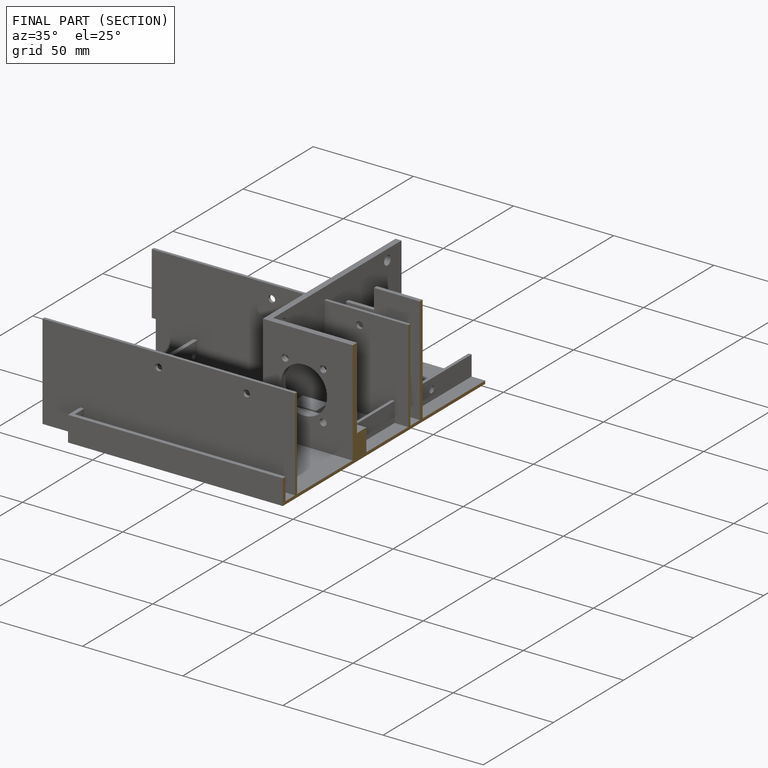
[diagram: finished part — half-section view (interior)]
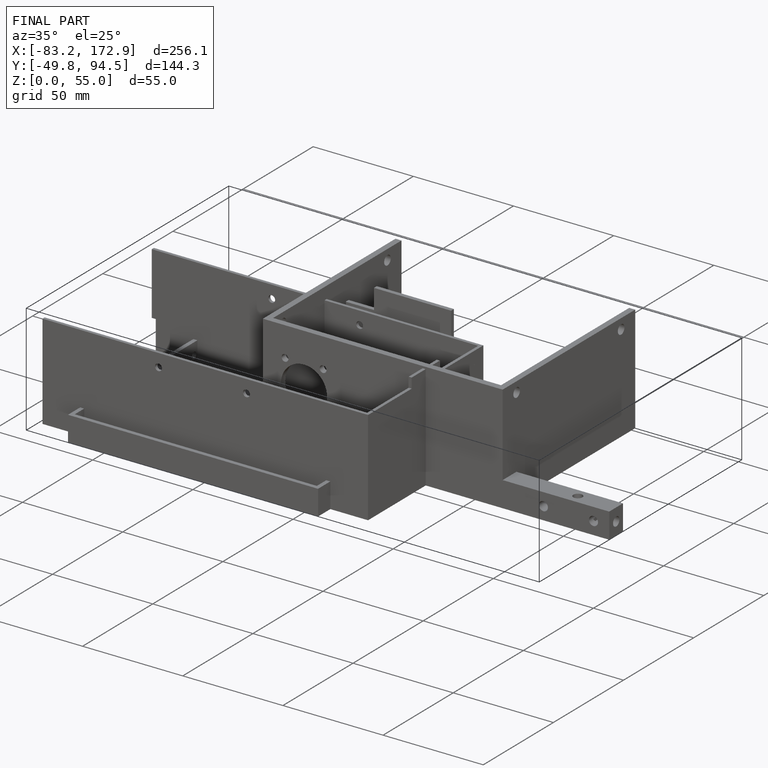
[diagram: finished part — iso view with bounding-box wireframe]
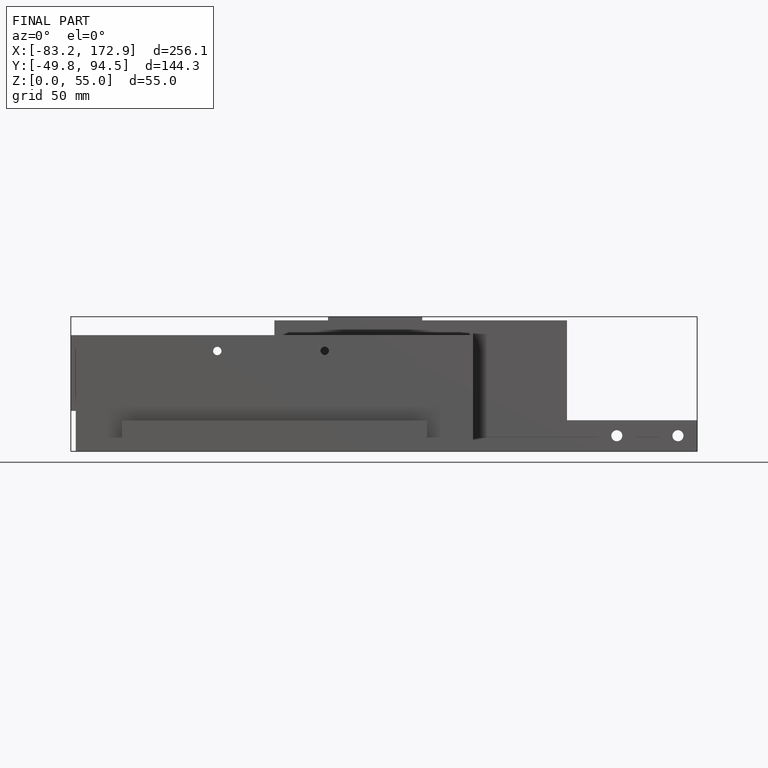
[diagram: finished part — front view with bounding-box wireframe]
